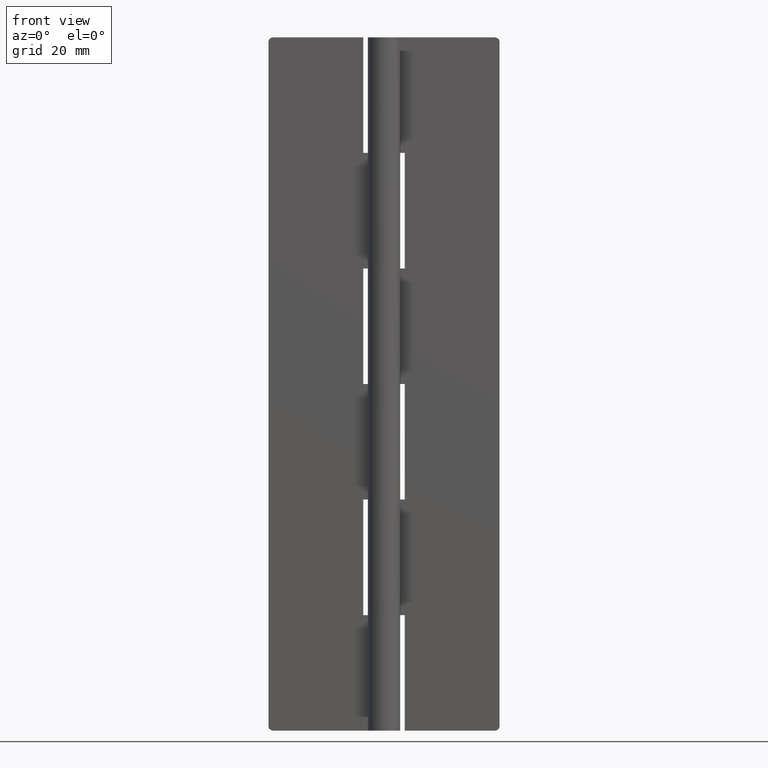
[diagram: clean part render]
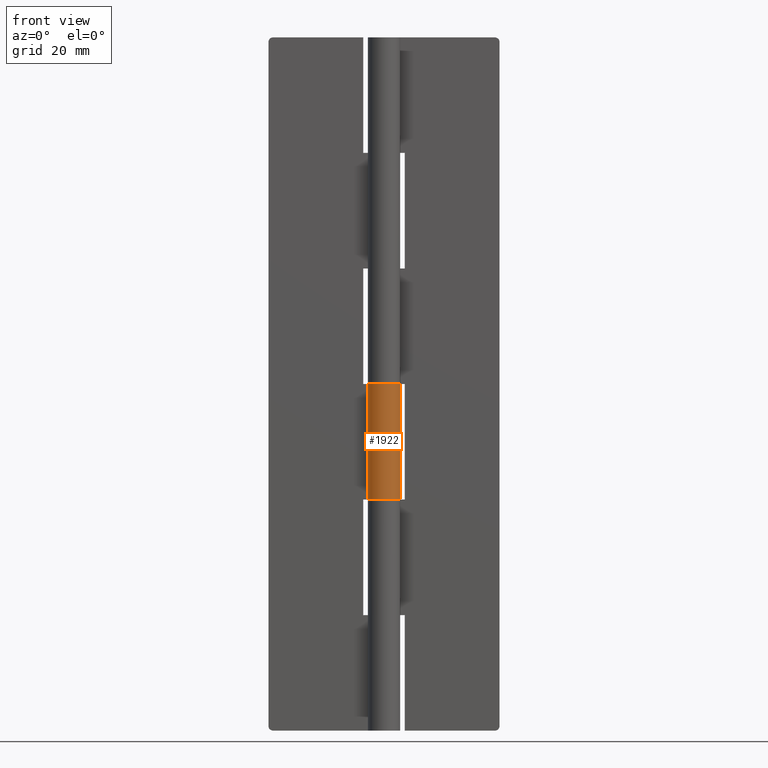
[diagram: same view with one face highlighted and labeled with its STEP entity id]
A machine part, front view. The second image highlights one B-rep face of the part: STEP entity #1922.
In plain terms, the highlighted face is a freeform B-spline surface patch.
Its self-contained STEP definition (entity closure, byte-faithful):
#1394=CARTESIAN_POINT('',(0.0,3.499999999999950,75.0));
#1395=VERTEX_POINT('',#1394);
#1436=CARTESIAN_POINT('',(-2.906458325866725,1.950000000000000,75.0));
#1437=VERTEX_POINT('',#1436);
#1443=CARTESIAN_POINT('',(0.0,3.500000000000000,75.0));
#1444=CARTESIAN_POINT('',(2.732759340469793,3.500000000000000,75.0));
#1445=CARTESIAN_POINT('',(3.395511382448716,0.848824158269077,75.0));
#1446=CARTESIAN_POINT('',(4.058263424427640,-1.802351683461844,75.0));
#1447=CARTESIAN_POINT('',(1.646966909200060,-3.088284313336452,75.0));
#1448=CARTESIAN_POINT('',(-0.764329606027519,-4.374216943211060,75.0));
#1449=CARTESIAN_POINT('',(-2.596662639363706,-2.346772919848172,75.0));
#1450=CARTESIAN_POINT('',(-4.428995672699895,-0.319328896485282,75.0));
#1451=CARTESIAN_POINT('',(-2.906458325866723,1.950000000000001,75.0));
#1459=(BOUNDED_CURVE()B_SPLINE_CURVE(2,(#1443,#1444,#1445,#1446,#1447,#1448,#1449,#1450,#1451),.UNSPECIFIED.,.F.,.U.)B_SPLINE_CURVE_WITH_KNOTS((3,2,2,2,3),(0.0,0.250000000000000,0.500000000000000,0.750000000000000,1.0),.UNSPECIFIED.)CURVE()GEOMETRIC_REPRESENTATION_ITEM()RATIONAL_B_SPLINE_CURVE((1.0,0.788200858942972,1.0,0.788200858942972,1.0,0.788200858942972,1.0,0.788200858942972,1.0))REPRESENTATION_ITEM(''));
#1460=EDGE_CURVE('',#1395,#1437,#1459,.T.);
#1490=CARTESIAN_POINT('',(-2.906458325866725,1.950000000000000,50.000008000000001));
#1491=VERTEX_POINT('',#1490);
#1492=CARTESIAN_POINT('',(0.0,3.499999999999950,50.000008000000001));
#1493=VERTEX_POINT('',#1492);
#1494=CARTESIAN_POINT('',(-2.906458325866724,1.950000000000000,50.000008000000001));
#1495=CARTESIAN_POINT('',(-4.428995672699894,-0.319328896485281,50.000007999999994));
#1496=CARTESIAN_POINT('',(-2.596662639363708,-2.346772919848170,50.000008000000001));
#1497=CARTESIAN_POINT('',(-0.764329606027520,-4.374216943211062,50.000007999999994));
#1498=CARTESIAN_POINT('',(1.646966909200061,-3.088284313336452,50.000008000000001));
#1499=CARTESIAN_POINT('',(4.058263424427635,-1.802351683461845,50.000007999999994));
#1500=CARTESIAN_POINT('',(3.395511382448717,0.848824158269075,50.000008000000001));
#1501=CARTESIAN_POINT('',(2.732759340469795,3.500000000000000,50.000007999999994));
#1502=CARTESIAN_POINT('',(0.0,3.500000000000000,50.000008000000001));
#1510=(BOUNDED_CURVE()B_SPLINE_CURVE(2,(#1494,#1495,#1496,#1497,#1498,#1499,#1500,#1501,#1502),.UNSPECIFIED.,.F.,.U.)B_SPLINE_CURVE_WITH_KNOTS((3,2,2,2,3),(0.0,0.250000000000000,0.500000000000000,0.750000000000000,1.0),.UNSPECIFIED.)CURVE()GEOMETRIC_REPRESENTATION_ITEM()RATIONAL_B_SPLINE_CURVE((1.0,0.788200858942973,1.0,0.788200858942973,1.0,0.788200858942973,1.0,0.788200858942973,1.0))REPRESENTATION_ITEM(''));
#1511=EDGE_CURVE('',#1491,#1493,#1510,.T.);
#1879=CARTESIAN_POINT('',(-2.906458325866725,1.950000000000000,75.0));
#1880=CARTESIAN_POINT('',(-2.906458325866725,1.950000000000000,50.000008000000001));
#1881=QUASI_UNIFORM_CURVE('',1,(#1879,#1880),.UNSPECIFIED.,.F.,.U.);
#1882=EDGE_CURVE('',#1437,#1491,#1881,.T.);
#1890=CARTESIAN_POINT('',(-2.849404314247117,2.032460344988288,75.624999799999998));
#1891=CARTESIAN_POINT('',(-2.849404314247117,2.032460344988288,49.359383204999993));
#1892=CARTESIAN_POINT('',(-5.419869493007912,-1.571198928386221,75.624999799999998));
#1893=CARTESIAN_POINT('',(-5.419869493007912,-1.571198928386221,49.359383204999986));
#1894=CARTESIAN_POINT('',(-1.320557256320388,-3.241315864395131,75.624999799999998));
#1895=CARTESIAN_POINT('',(-1.320557256320388,-3.241315864395131,49.359383204999993));
#1896=CARTESIAN_POINT('',(2.778754980367134,-4.911432800404040,75.624999799999998));
#1897=CARTESIAN_POINT('',(2.778754980367134,-4.911432800404040,49.359383204999986));
#1898=CARTESIAN_POINT('',(3.458487237310264,-0.537462584150751,75.624999799999998));
#1899=CARTESIAN_POINT('',(3.458487237310264,-0.537462584150751,49.359383204999993));
#1900=CARTESIAN_POINT('',(4.138219494253393,3.836507632102540,75.624999799999998));
#1901=CARTESIAN_POINT('',(4.138219494253393,3.836507632102540,49.359383204999986));
#1902=CARTESIAN_POINT('',(-0.274606835047458,3.489210668065946,75.624999799999998));
#1903=CARTESIAN_POINT('',(-0.274606835047458,3.489210668065946,49.359383204999993));
#1911=(BOUNDED_SURFACE()B_SPLINE_SURFACE(1,2,((#1890,#1892,#1894,#1896,#1898,#1900,#1902),(#1891,#1893,#1895,#1897,#1899,#1901,#1903)),.UNSPECIFIED.,.F.,.F.,.U.)B_SPLINE_SURFACE_WITH_KNOTS((2,2),(3,2,2,3),(0.0,26.265616595000001),(0.0,6.777915536387797,13.555831072775600,20.333746609163391),.UNSPECIFIED.)GEOMETRIC_REPRESENTATION_ITEM()RATIONAL_B_SPLINE_SURFACE(((1.0,0.620235491268260,1.0,0.620235491268260,1.0,0.620235491268260,1.0),(1.0,0.620235491268260,1.0,0.620235491268260,1.0,0.620235491268260,1.0)))REPRESENTATION_ITEM('')SURFACE());
#1912=ORIENTED_EDGE('',*,*,#1460,.T.);
#1913=ORIENTED_EDGE('',*,*,#1882,.T.);
#1914=ORIENTED_EDGE('',*,*,#1511,.T.);
#1915=CARTESIAN_POINT('',(0.0,3.499999999999950,75.0));
#1916=CARTESIAN_POINT('',(0.0,3.499999999999950,50.000008000000001));
#1917=QUASI_UNIFORM_CURVE('',1,(#1915,#1916),.UNSPECIFIED.,.F.,.U.);
#1918=EDGE_CURVE('',#1395,#1493,#1917,.T.);
#1919=ORIENTED_EDGE('',*,*,#1918,.F.);
#1920=EDGE_LOOP('',(#1912,#1913,#1914,#1919));
#1921=FACE_OUTER_BOUND('',#1920,.T.);
#1922=ADVANCED_FACE('',(#1921),#1911,.T.);